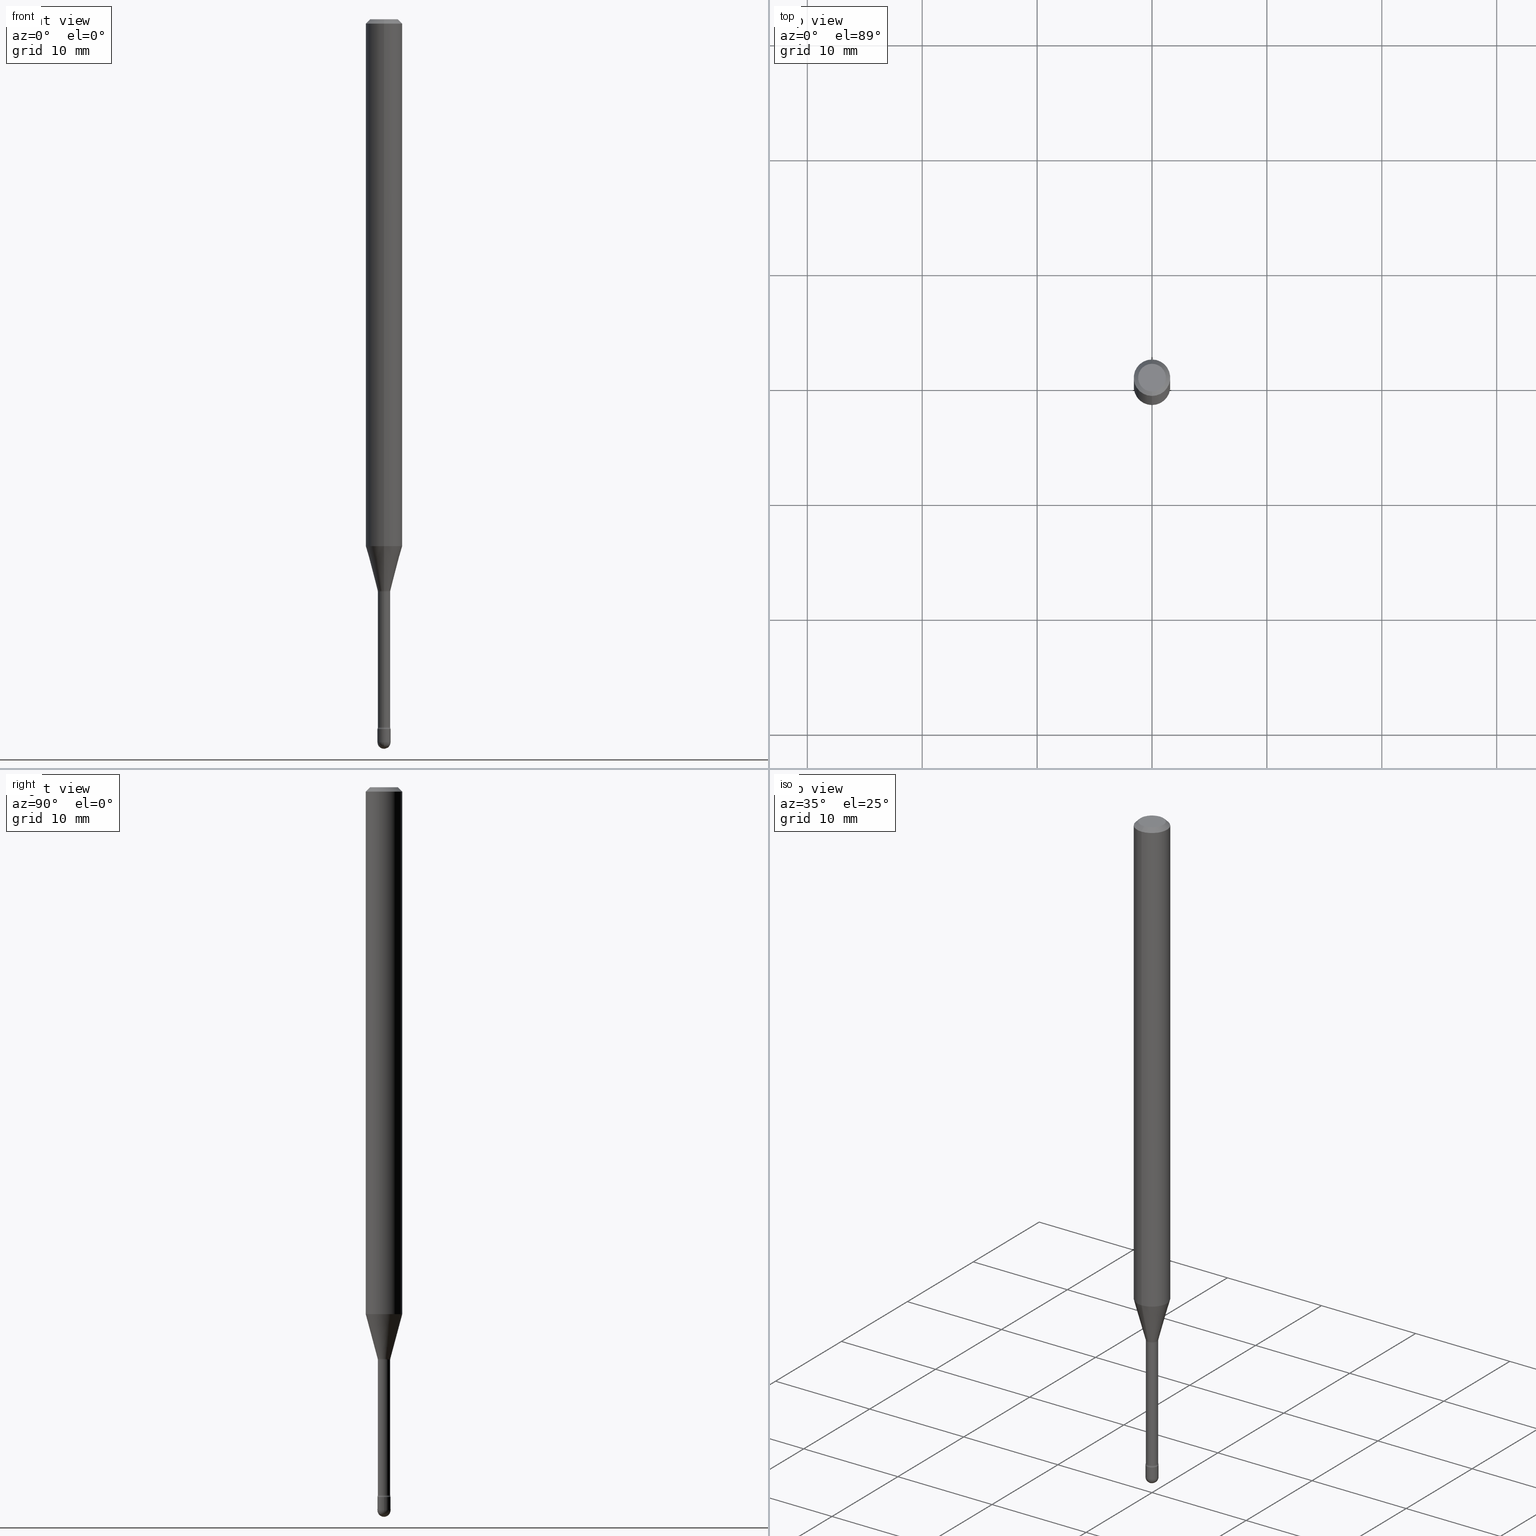
[diagram: canonical four-view strip — front | top / right | iso, engineering-drawing reading convention]
A machine part, canonical four-view strip (front | top / right | iso — engineering-drawing reading convention). The complete STEP part file that produces these views, byte-faithful:
ISO-10303-21;
HEADER;
FILE_DESCRIPTION (( 'STEP AP203' ),
    '1' );
FILE_NAME ('09462.STEP',
    '2024-04-09T23:26:53',
    ( '' ),
    ( '' ),
    'SwSTEP 2.0',
    'SolidWorks 2023',
    '' );
FILE_SCHEMA (( 'CONFIG_CONTROL_DESIGN' ));
ENDSEC;

DATA;
#1 = VERTEX_POINT ( 'NONE', #420 ) ;
#2 =( LENGTH_UNIT ( ) NAMED_UNIT ( * ) SI_UNIT ( $, .METRE. ) );
#3 = ORIENTED_EDGE ( 'NONE', *, *, #281, .F. ) ;
#4 = EDGE_CURVE ( 'NONE', #218, #417, #93, .T. ) ;
#5 = VECTOR ( 'NONE', #415, 39.37007874015748143 ) ;
#6 = DIRECTION ( 'NONE',  ( -2.445468806185136877E-29, 3.491481338843145188E-15, 1.000000000000000000 ) ) ;
#7 = VERTEX_POINT ( 'NONE', #429 ) ;
#8 = APPROVAL ( #192, 'UNSPECIFIED' ) ;
#9 = EDGE_LOOP ( 'NONE', ( #95, #479, #77, #105 ) ) ;
#10 = CARTESIAN_POINT ( 'NONE',  ( -0.02249999999999999917, -8.410841700979189875E-15, -2.432000000000000384 ) ) ;
#11 = EDGE_CURVE ( 'NONE', #7, #369, #405, .T. ) ;
#12 = CARTESIAN_POINT ( 'NONE',  ( 6.058648967323676636E-29, -8.650145016983893338E-15, -2.477500000000000036 ) ) ;
#13 = SHAPE_DEFINITION_REPRESENTATION ( #325, #337 ) ;
#14 = CIRCLE ( 'NONE', #329, 0.02166111260566397703 ) ;
#15 = CIRCLE ( 'NONE', #53, 0.02249999999999999917 ) ;
#16 = DIRECTION ( 'NONE',  ( -6.982962677686265922E-15, -1.000000000000000000, 3.491541821994768116E-15 ) ) ;
#17 = PERSON_AND_ORGANIZATION_ROLE ( 'design_owner' ) ;
#18 = APPLICATION_CONTEXT ( 'configuration controlled 3d designs of mechanical parts and assemblies' ) ;
#19 = EDGE_CURVE ( 'NONE', #378, #369, #364, .T. ) ;
#20 = DIRECTION ( 'NONE',  ( -6.982962677686265922E-15, -1.000000000000000000, 4.370956789862821150E-15 ) ) ;
#21 = PERSON_AND_ORGANIZATION ( #439, #316 ) ;
#22 = ADVANCED_FACE ( 'NONE', ( #362 ), #539, .F. ) ;
#23 = DIRECTION ( 'NONE',  ( -2.445426571026095552E-29, 3.491541821994768116E-15, 1.000000000000000000 ) ) ;
#24 = AXIS2_PLACEMENT_3D ( 'NONE', #413, #458, #507 ) ;
#25 = DIRECTION ( 'NONE',  ( -2.445426571026095552E-29, 3.491541821994768116E-15, 1.000000000000000000 ) ) ;
#26 = DIRECTION ( 'NONE',  ( 7.105427357601001859E-15, 1.000000000000000000, 0.000000000000000000 ) ) ;
#27 = CARTESIAN_POINT ( 'NONE',  ( -3.773273898774340269E-16, -0.04749999999999999362, 8.310407742290815133E-17 ) ) ;
#28 = ADVANCED_FACE ( 'NONE', ( #493 ), #330, .T. ) ;
#29 = CC_DESIGN_PERSON_AND_ORGANIZATION_ASSIGNMENT ( #21, #500, ( #308 ) ) ;
#30 = EDGE_LOOP ( 'NONE', ( #184, #271, #263, #314 ) ) ;
#31 = CARTESIAN_POINT ( 'NONE',  ( 6.058648967323676636E-29, -8.650145016983893338E-15, -2.477500000000000036 ) ) ;
#32 = CARTESIAN_POINT ( 'NONE',  ( 4.440892098501069896E-16, 0.06249999999999995143, -0.01500000000000030129 ) ) ;
#33 = CARTESIAN_POINT ( 'NONE',  ( 5.947380136642253002E-29, -8.491282616066530991E-15, -2.432000000000000384 ) ) ;
#34 = AXIS2_PLACEMENT_3D ( 'NONE', #290, #546, #491 ) ;
#35 = TOROIDAL_SURFACE ( 'NONE', #313, 0.03615000000000006403, 0.01500000000000001159 ) ;
#36 = PRODUCT_DEFINITION_FORMATION_WITH_SPECIFIED_SOURCE ( 'ANY', '', #245, .NOT_KNOWN. ) ;
#37 = DIRECTION ( 'NONE',  ( -2.445426571026095552E-29, 3.491541821994768116E-15, 1.000000000000000000 ) ) ;
#38 = DIRECTION ( 'NONE',  ( -1.000000000000000000, 6.982962677686265922E-15, -4.883557194083112340E-29 ) ) ;
#39 = ORIENTED_EDGE ( 'NONE', *, *, #275, .F. ) ;
#40 = DATE_AND_TIME ( #251, #349 ) ;
#41 = EDGE_CURVE ( 'NONE', #395, #1, #481, .T. ) ;
#42 = FACE_OUTER_BOUND ( 'NONE', #30, .T. ) ;
#43 = ORIENTED_EDGE ( 'NONE', *, *, #41, .F. ) ;
#44 = FACE_OUTER_BOUND ( 'NONE', #388, .T. ) ;
#45 = LINE ( 'NONE', #125, #94 ) ;
#46 = CARTESIAN_POINT ( 'NONE',  ( 0.02249999999999999570, -8.727830476773152219E-15, -2.477500000000000036 ) ) ;
#47 = CIRCLE ( 'NONE', #116, 0.02115000000000000560 ) ;
#48 = DIRECTION ( 'NONE',  ( -6.982962677686267499E-15, -1.000000000000000000, 0.000000000000000000 ) ) ;
#49 = ORIENTED_EDGE ( 'NONE', *, *, #113, .F. ) ;
#50 = ORIENTED_EDGE ( 'NONE', *, *, #433, .F. ) ;
#51 = ORIENTED_EDGE ( 'NONE', *, *, #71, .F. ) ;
#52 = CARTESIAN_POINT ( 'NONE',  ( 3.668139856539163560E-31, -5.237312732992181560E-17, -0.01500000000000008271 ) ) ;
#53 = AXIS2_PLACEMENT_3D ( 'NONE', #450, #23, #197 ) ;
#54 = FACE_OUTER_BOUND ( 'NONE', #425, .T. ) ;
#55 = EDGE_LOOP ( 'NONE', ( #49, #414, #502, #103 ) ) ;
#56 = CARTESIAN_POINT ( 'NONE',  ( 0.000000000000000000, 0.000000000000000000, 0.000000000000000000 ) ) ;
#57 = ADVANCED_FACE ( 'NONE', ( #327 ), #324, .T. ) ;
#58 = EDGE_CURVE ( 'NONE', #144, #430, #151, .T. ) ;
#59 = ORIENTED_EDGE ( 'NONE', *, *, #84, .F. ) ;
#60 = CYLINDRICAL_SURFACE ( 'NONE', #348, 0.02115000000000002642 ) ;
#61 = APPROVAL_DATE_TIME ( #468, #256 ) ;
#62 = APPLICATION_CONTEXT ( 'configuration controlled 3d designs of mechanical parts and assemblies' ) ;
#63 = AXIS2_PLACEMENT_3D ( 'NONE', #143, #434, #322 ) ;
#64 = CC_DESIGN_APPROVAL ( #523, ( #36 ) ) ;
#65 = CC_DESIGN_DATE_AND_TIME_ASSIGNMENT ( #461, #87, ( #308 ) ) ;
#66 = CARTESIAN_POINT ( 'NONE',  ( 6.058648967323676636E-29, -8.650145016983893338E-15, -2.477500000000000036 ) ) ;
#67 = DIRECTION ( 'NONE',  ( 0.000000000000000000, 0.000000000000000000, 1.000000000000000000 ) ) ;
#68 = CONICAL_SURFACE ( 'NONE', #482, 0.06250000000000000000, 0.7853981633974483900 ) ;
#69 = CARTESIAN_POINT ( 'NONE',  ( 5.932171463552647132E-29, -8.469568661610591604E-15, -2.425780876267511932 ) ) ;
#70 = PERSON_AND_ORGANIZATION ( #439, #316 ) ;
#71 = EDGE_CURVE ( 'NONE', #472, #253, #347, .T. ) ;
#72 = CARTESIAN_POINT ( 'NONE',  ( -1.512587408824631926E-16, -0.02166111260567081531, -1.958092501787273232 ) ) ;
#73 = FACE_OUTER_BOUND ( 'NONE', #530, .T. ) ;
#74 = DIRECTION ( 'NONE',  ( -2.445426571026095552E-29, 3.491541821994768116E-15, 1.000000000000000000 ) ) ;
#75 = CARTESIAN_POINT ( 'NONE',  ( 0.02249999999999999917, -8.648399276314471045E-15, -2.432000000000000384 ) ) ;
#76 = DIRECTION ( 'NONE',  ( -2.445426571026095552E-29, 3.491541821994768116E-15, 1.000000000000000000 ) ) ;
#77 = ORIENTED_EDGE ( 'NONE', *, *, #487, .F. ) ;
#78 = DIRECTION ( 'NONE',  ( -6.982962677686265922E-15, -1.000000000000000000, 4.370956789862821150E-15 ) ) ;
#79 = CARTESIAN_POINT ( 'NONE',  ( 1.571166602480017581E-16, 0.02249999999999136718, -2.477500000000000036 ) ) ;
#80 = EDGE_CURVE ( 'NONE', #223, #417, #382, .T. ) ;
#81 = AXIS2_PLACEMENT_3D ( 'NONE', #418, #214, #303 ) ;
#82 = ORIENTED_EDGE ( 'NONE', *, *, #219, .F. ) ;
#83 = APPROVAL_STATUS ( 'not_yet_approved' ) ;
#84 = EDGE_CURVE ( 'NONE', #140, #516, #236, .T. ) ;
#85 = ORIENTED_EDGE ( 'NONE', *, *, #407, .F. ) ;
#86 = CC_DESIGN_PERSON_AND_ORGANIZATION_ASSIGNMENT ( #560, #556, ( #36 ) ) ;
#87 = DATE_TIME_ROLE ( 'creation_date' ) ;
#88 = DIRECTION ( 'NONE',  ( -6.982962677686266711E-15, -1.000000000000000000, 0.000000000000000000 ) ) ;
#89 = ORIENTED_EDGE ( 'NONE', *, *, #334, .F. ) ;
#90 = DATE_AND_TIME ( #547, #519 ) ;
#91 = EDGE_CURVE ( 'NONE', #369, #378, #47, .T. ) ;
#92 = CARTESIAN_POINT ( 'NONE',  ( -1.169113584055446105E-44, 1.669184350826100908E-30, 4.780733988912460139E-16 ) ) ;
#93 = CIRCLE ( 'NONE', #221, 0.02249999999999999570 ) ;
#94 = VECTOR ( 'NONE', #37, 39.37007874015748143 ) ;
#95 = ORIENTED_EDGE ( 'NONE', *, *, #80, .F. ) ;
#96 = CIRCLE ( 'NONE', #412, 0.02249999999999999570 ) ;
#97 = ORIENTED_EDGE ( 'NONE', *, *, #566, .F. ) ;
#98 = VERTEX_POINT ( 'NONE', #156 ) ;
#99 = CALENDAR_DATE ( 2024, 9, 4 ) ;
#100 = ORIENTED_EDGE ( 'NONE', *, *, #58, .T. ) ;
#101 = EDGE_CURVE ( 'NONE', #7, #454, #14, .T. ) ;
#102 = AXIS2_PLACEMENT_3D ( 'NONE', #291, #462, #88 ) ;
#103 = ORIENTED_EDGE ( 'NONE', *, *, #510, .F. ) ;
#104 = DIRECTION ( 'NONE',  ( -2.445426571026095552E-29, 3.491541821994768116E-15, 1.000000000000000000 ) ) ;
#105 = ORIENTED_EDGE ( 'NONE', *, *, #183, .F. ) ;
#106 = DIRECTION ( 'NONE',  ( 1.000000000000000000, -6.982962677686269866E-15, 0.000000000000000000 ) ) ;
#107 = CARTESIAN_POINT ( 'NONE',  ( -4.364351673553475918E-16, -0.06250000000000632827, -1.805679699107026970 ) ) ;
#108 = CARTESIAN_POINT ( 'NONE',  ( 1.539114621044086185E-16, 0.02166111260565713875, -1.958092501787273232 ) ) ;
#109 = VECTOR ( 'NONE', #544, 39.37007874015748143 ) ;
#110 = CIRCLE ( 'NONE', #145, 0.02250000000000005121 ) ;
#111 = CC_DESIGN_APPROVAL ( #256, ( #505 ) ) ;
#112 = DIRECTION ( 'NONE',  ( -2.445468806185136597E-29, 3.491481338843145583E-15, 1.000000000000000000 ) ) ;
#113 = EDGE_CURVE ( 'NONE', #1, #397, #406, .T. ) ;
#114 = CARTESIAN_POINT ( 'NONE',  ( -0.02249999999999999917, 1.598721155460225359E-16, -1.106760395307353780E-30 ) ) ;
#115 = CARTESIAN_POINT ( 'NONE',  ( 4.797865276947280430E-29, -6.850317024129193206E-15, -1.961974787463811154 ) ) ;
#116 = AXIS2_PLACEMENT_3D ( 'NONE', #115, #446, #240 ) ;
#117 = CIRCLE ( 'NONE', #163, 0.02166111260566397703 ) ;
#118 = AXIS2_PLACEMENT_3D ( 'NONE', #422, #135, #469 ) ;
#119 = EDGE_CURVE ( 'NONE', #1, #395, #401, .T. ) ;
#120 = CARTESIAN_POINT ( 'NONE',  ( 4.797948141264463506E-29, -6.850198357710643082E-15, -1.961974787463811154 ) ) ;
#121 = DIRECTION ( 'NONE',  ( -6.982962677686266711E-15, -1.000000000000000000, 0.000000000000000000 ) ) ;
#122 = ADVANCED_FACE ( 'NONE', ( #403 ), #421, .T. ) ;
#123 = EDGE_CURVE ( 'NONE', #98, #397, #358, .T. ) ;
#124 = DIRECTION ( 'NONE',  ( -6.982962677686265922E-15, -1.000000000000000000, 3.483106191921935554E-15 ) ) ;
#125 = CARTESIAN_POINT ( 'NONE',  ( 1.502797886132613524E-16, 0.02115000000000002642, 4.042272893560565981E-16 ) ) ;
#126 = ORIENTED_EDGE ( 'NONE', *, *, #268, .F. ) ;
#127 = VECTOR ( 'NONE', #164, 39.37007874015748854 ) ;
#128 = EDGE_LOOP ( 'NONE', ( #59, #210, #520, #307, #269 ) ) ;
#129 = CARTESIAN_POINT ( 'NONE',  ( -4.364351673553916201E-16, -0.06250000000000000000, 6.962947627659190459E-16 ) ) ;
#130 = ORIENTED_EDGE ( 'NONE', *, *, #153, .T. ) ;
#131 = ADVANCED_FACE ( 'NONE', ( #44 ), #68, .T. ) ;
#132 = DIRECTION ( 'NONE',  ( -2.445426571026095552E-29, 3.491541821994768116E-15, 1.000000000000000000 ) ) ;
#133 = ORIENTED_EDGE ( 'NONE', *, *, #183, .T. ) ;
#134 = APPROVAL_STATUS ( 'not_yet_approved' ) ;
#135 = DIRECTION ( 'NONE',  ( -1.000000000000000000, 6.982962677686265922E-15, -4.883557194083112340E-29 ) ) ;
#136 = DIRECTION ( 'NONE',  ( -6.982962677686265922E-15, -1.000000000000000000, 3.491541821994767722E-15 ) ) ;
#137 = AXIS2_PLACEMENT_3D ( 'NONE', #480, #531, #351 ) ;
#138 = ORIENTED_EDGE ( 'NONE', *, *, #377, .F. ) ;
#139 = CARTESIAN_POINT ( 'NONE',  ( -4.287811248607203282E-16, -0.06250000000000005551, -0.01499999999999986587 ) ) ;
#140 = VERTEX_POINT ( 'NONE', #260 ) ;
#141 = DIRECTION ( 'NONE',  ( -6.982962677686265922E-15, -1.000000000000000000, 3.483106191921935554E-15 ) ) ;
#142 = EDGE_LOOP ( 'NONE', ( #85, #130, #356, #82 ) ) ;
#143 = CARTESIAN_POINT ( 'NONE',  ( -1.169113584055446105E-44, 1.669184350826100908E-30, 4.780733988912460139E-16 ) ) ;
#144 = VERTEX_POINT ( 'NONE', #171 ) ;
#145 = AXIS2_PLACEMENT_3D ( 'NONE', #12, #148, #534 ) ;
#146 = LOCAL_TIME ( 19, 26, 53.00000000000000000, #292 ) ;
#147 = APPROVAL_DATE_TIME ( #404, #8 ) ;
#148 = DIRECTION ( 'NONE',  ( -1.000000000000000000, 7.105427357601001070E-15, -4.926315508542082329E-29 ) ) ;
#149 = CARTESIAN_POINT ( 'NONE',  ( 4.415657114958730253E-29, -6.304606186559115346E-15, -1.805679699107027192 ) ) ;
#150 = APPROVAL_ROLE ( '' ) ;
#151 = CIRCLE ( 'NONE', #293, 0.01500000000000001159 ) ;
#152 = AXIS2_PLACEMENT_3D ( 'NONE', #239, #451, #200 ) ;
#153 = EDGE_CURVE ( 'NONE', #253, #98, #380, .T. ) ;
#154 = APPROVAL_PERSON_ORGANIZATION ( #261, #256, #346 ) ;
#155 = CARTESIAN_POINT ( 'NONE',  ( 0.000000000000000000, 0.000000000000000000, 0.000000000000000000 ) ) ;
#156 = CARTESIAN_POINT ( 'NONE',  ( -4.364351673553912750E-16, -0.06250000000000005551, -0.01499999999999986587 ) ) ;
#157 = CARTESIAN_POINT ( 'NONE',  ( 1.571166602480004515E-16, 0.02249999999999150943, -2.432000000000000384 ) ) ;
#158 = ORIENTED_EDGE ( 'NONE', *, *, #4, .T. ) ;
#159 = DIRECTION ( 'NONE',  ( 1.000000000000000000, -7.105427357601001070E-15, 4.926316249247062833E-29 ) ) ;
#160 = MECHANICAL_CONTEXT ( 'NONE', #18, 'mechanical' ) ;
#161 = DIRECTION ( 'NONE',  ( -2.445468806185136597E-29, 3.491481338843145583E-15, 1.000000000000000000 ) ) ;
#162 = CARTESIAN_POINT ( 'NONE',  ( 2.568611989773242010E-16, 0.03614999999999315289, -1.961974787463811154 ) ) ;
#163 = AXIS2_PLACEMENT_3D ( 'NONE', #173, #215, #168 ) ;
#164 = DIRECTION ( 'NONE',  ( -1.807323732225326195E-15, -0.2588190451025176309, 0.9659258262890690894 ) ) ;
#165 =( GEOMETRIC_REPRESENTATION_CONTEXT ( 3 ) GLOBAL_UNCERTAINTY_ASSIGNED_CONTEXT ( ( #295 ) ) GLOBAL_UNIT_ASSIGNED_CONTEXT ( ( #266, #473, #367 ) ) REPRESENTATION_CONTEXT ( 'NONE', 'WORKASPACE' ) );
#166 = ORIENTED_EDGE ( 'NONE', *, *, #315, .T. ) ;
#167 = DIRECTION ( 'NONE',  ( 6.982962677686265922E-15, 1.000000000000000000, -3.483106191921935554E-15 ) ) ;
#168 = DIRECTION ( 'NONE',  ( -6.982962677686266711E-15, -1.000000000000000000, 0.000000000000000000 ) ) ;
#169 = ORIENTED_EDGE ( 'NONE', *, *, #11, .F. ) ;
#170 = ORIENTED_EDGE ( 'NONE', *, *, #19, .T. ) ;
#171 = CARTESIAN_POINT ( 'NONE',  ( 1.550759520797014538E-16, 0.02114999999999158178, -2.425780876267511932 ) ) ;
#172 = EDGE_CURVE ( 'NONE', #498, #430, #541, .T. ) ;
#173 = CARTESIAN_POINT ( 'NONE',  ( 4.788371432397560516E-29, -6.836761861324629935E-15, -1.958092501787273232 ) ) ;
#174 = AXIS2_PLACEMENT_3D ( 'NONE', #69, #366, #442 ) ;
#175 = APPROVAL_PERSON_ORGANIZATION ( #230, #8, #150 ) ;
#176 = CARTESIAN_POINT ( 'NONE',  ( -1.512587408824631926E-16, -0.02166111260567081531, -1.958092501787273232 ) ) ;
#177 = ADVANCED_FACE ( 'NONE', ( #296 ), #460, .F. ) ;
#178 = DIRECTION ( 'NONE',  ( -2.445468806185136597E-29, 3.491481338843145583E-15, 1.000000000000000000 ) ) ;
#179 = ORIENTED_EDGE ( 'NONE', *, *, #113, .T. ) ;
#180 = LENGTH_MEASURE_WITH_UNIT ( LENGTH_MEASURE( 0.02539999999999999897 ), #2 );
#181 = CIRCLE ( 'NONE', #285, 0.02115000000000005070 ) ;
#182 = ORIENTED_EDGE ( 'NONE', *, *, #407, .T. ) ;
#183 = EDGE_CURVE ( 'NONE', #417, #140, #204, .T. ) ;
#184 = ORIENTED_EDGE ( 'NONE', *, *, #101, .F. ) ;
#185 = CYLINDRICAL_SURFACE ( 'NONE', #471, 0.02249999999999999917 ) ;
#186 = DIRECTION ( 'NONE',  ( 1.000000000000000000, -6.982962677686269077E-15, 0.000000000000000000 ) ) ;
#187 = ORIENTED_EDGE ( 'NONE', *, *, #172, .T. ) ;
#188 = ADVANCED_FACE ( 'NONE', ( #73 ), #267, .F. ) ;
#189 = AXIS2_PLACEMENT_3D ( 'NONE', #162, #159, #26 ) ;
#190 = CIRCLE ( 'NONE', #137, 0.02249999999999999570 ) ;
#191 = DIRECTION ( 'NONE',  ( 1.000000000000000000, -6.982962677686269866E-15, 0.000000000000000000 ) ) ;
#192 = APPROVAL_STATUS ( 'not_yet_approved' ) ;
#193 = DIRECTION ( 'NONE',  ( 7.105427357600999492E-15, 1.000000000000000000, 0.000000000000000000 ) ) ;
#194 = DIRECTION ( 'NONE',  ( 1.000000000000000000, -7.105427357601001070E-15, 4.926316249247062833E-29 ) ) ;
#195 = AXIS2_PLACEMENT_3D ( 'NONE', #155, #112, #563 ) ;
#196 = ADVANCED_FACE ( 'NONE', ( #497 ), #201, .F. ) ;
#197 = DIRECTION ( 'NONE',  ( -6.982962677686265133E-15, -1.000000000000000000, 0.000000000000000000 ) ) ;
#198 = CARTESIAN_POINT ( 'NONE',  ( 3.316907271900976096E-16, 0.04749999999999999362, 3.181638333994990684E-17 ) ) ;
#199 = CARTESIAN_POINT ( 'NONE',  ( 2.568611989773359353E-16, 0.03614999999999159164, -2.425780876267511932 ) ) ;
#200 = DIRECTION ( 'NONE',  ( 1.000000000000000000, -6.982962677686269866E-15, 0.000000000000000000 ) ) ;
#201 = PLANE ( 'NONE',  #518 ) ;
#202 = ORIENTED_EDGE ( 'NONE', *, *, #172, .F. ) ;
#203 = DIRECTION ( 'NONE',  ( 6.982962677686265922E-15, 1.000000000000000000, 0.000000000000000000 ) ) ;
#204 = CIRCLE ( 'NONE', #152, 0.02249999999999999570 ) ;
#205 = APPROVAL_PERSON_ORGANIZATION ( #419, #523, #381 ) ;
#206 = DIRECTION ( 'NONE',  ( -6.982962677686265922E-15, -1.000000000000000000, 3.491541821994767722E-15 ) ) ;
#207 = EDGE_LOOP ( 'NONE', ( #400, #100, #300, #97 ) ) ;
#208 = LINE ( 'NONE', #129, #5 ) ;
#209 = COORDINATED_UNIVERSAL_TIME_OFFSET ( 5, 0, .BEHIND. ) ;
#210 = ORIENTED_EDGE ( 'NONE', *, *, #487, .T. ) ;
#211 = ADVANCED_FACE ( 'NONE', ( #463 ), #490, .T. ) ;
#212 = CONICAL_SURFACE ( 'NONE', #213, 0.02166111260566397703, 0.2617993877991496854 ) ;
#213 = AXIS2_PLACEMENT_3D ( 'NONE', #226, #437, #319 ) ;
#214 = DIRECTION ( 'NONE',  ( -1.000000000000000000, 6.982962677686265922E-15, -4.883557194083111780E-29 ) ) ;
#215 = DIRECTION ( 'NONE',  ( -2.445426571026095552E-29, 3.491541821994768116E-15, 1.000000000000000000 ) ) ;
#216 = ORIENTED_EDGE ( 'NONE', *, *, #268, .T. ) ;
#217 = EDGE_CURVE ( 'NONE', #454, #378, #246, .T. ) ;
#218 = VERTEX_POINT ( 'NONE', #46 ) ;
#219 = EDGE_CURVE ( 'NONE', #472, #397, #384, .T. ) ;
#220 = DATE_TIME_ROLE ( 'classification_date' ) ;
#221 = AXIS2_PLACEMENT_3D ( 'NONE', #387, #565, #191 ) ;
#222 = AXIS2_PLACEMENT_3D ( 'NONE', #416, #254, #299 ) ;
#223 = VERTEX_POINT ( 'NONE', #286 ) ;
#224 = AXIS2_PLACEMENT_3D ( 'NONE', #233, #67, #320 ) ;
#225 = DIRECTION ( 'NONE',  ( -2.445468806185136597E-29, 3.491481338843145583E-15, 1.000000000000000000 ) ) ;
#226 = CARTESIAN_POINT ( 'NONE',  ( 4.788371432397560516E-29, -6.836761861324629935E-15, -1.958092501787273232 ) ) ;
#227 = ORIENTED_EDGE ( 'NONE', *, *, #281, .T. ) ;
#228 = CYLINDRICAL_SURFACE ( 'NONE', #63, 0.02115000000000002642 ) ;
#229 = ORIENTED_EDGE ( 'NONE', *, *, #101, .T. ) ;
#230 = PERSON_AND_ORGANIZATION ( #439, #316 ) ;
#231 = AXIS2_PLACEMENT_3D ( 'NONE', #374, #550, #278 ) ;
#232 = VECTOR ( 'NONE', #537, 39.37007874015748143 ) ;
#233 = CARTESIAN_POINT ( 'NONE',  ( 0.000000000000000000, 0.000000000000000000, 0.000000000000000000 ) ) ;
#234 = DIRECTION ( 'NONE',  ( -6.982962677686266711E-15, -1.000000000000000000, 3.491541821994766539E-15 ) ) ;
#235 = EDGE_CURVE ( 'NONE', #430, #498, #15, .T. ) ;
#236 = LINE ( 'NONE', #114, #109 ) ;
#237 = DIRECTION ( 'NONE',  ( 1.000000000000000000, -6.982962677686265922E-15, 4.883557194083112340E-29 ) ) ;
#238 = TOROIDAL_SURFACE ( 'NONE', #365, 0.03615000000000000852, 0.01500000000000003067 ) ;
#239 = CARTESIAN_POINT ( 'NONE',  ( 6.058648967323676636E-29, -8.650145016983893338E-15, -2.477500000000000036 ) ) ;
#240 = DIRECTION ( 'NONE',  ( -6.982962677686265133E-15, -1.000000000000000000, 0.000000000000000000 ) ) ;
#241 = PERSON_AND_ORGANIZATION_ROLE ( 'classification_officer' ) ;
#242 = EDGE_LOOP ( 'NONE', ( #227, #249, #43, #126 ) ) ;
#243 = CARTESIAN_POINT ( 'NONE',  ( -1.476896606330055594E-16, -0.02115000000000851962, -2.425780876267511932 ) ) ;
#244 = AXIS2_PLACEMENT_3D ( 'NONE', #370, #408, #78 ) ;
#245 = PRODUCT ( '09462', '09462', '', ( #160 ) ) ;
#246 = CIRCLE ( 'NONE', #323, 0.01500000000000002720 ) ;
#247 = EDGE_LOOP ( 'NONE', ( #431, #179, #508, #306 ) ) ;
#248 = DIRECTION ( 'NONE',  ( -2.445426571026095272E-29, 3.491541821994768116E-15, 1.000000000000000000 ) ) ;
#249 = ORIENTED_EDGE ( 'NONE', *, *, #339, .T. ) ;
#250 = DIRECTION ( 'NONE',  ( -2.445426571026095552E-29, 3.491541821994768116E-15, 1.000000000000000000 ) ) ;
#251 = CALENDAR_DATE ( 2024, 9, 4 ) ;
#252 = EDGE_LOOP ( 'NONE', ( #345, #89, #484, #187 ) ) ;
#253 = VERTEX_POINT ( 'NONE', #27 ) ;
#254 = DIRECTION ( 'NONE',  ( -2.445426571026095552E-29, 3.491541821994768116E-15, 1.000000000000000000 ) ) ;
#255 = CARTESIAN_POINT ( 'NONE',  ( -2.524341007983105646E-16, -0.03615000000000685720, -1.961974787463811154 ) ) ;
#256 = APPROVAL ( #134, 'UNSPECIFIED' ) ;
#257 = AXIS2_PLACEMENT_3D ( 'NONE', #288, #538, #452 ) ;
#258 = AXIS2_PLACEMENT_3D ( 'NONE', #120, #76, #206 ) ;
#259 = EDGE_LOOP ( 'NONE', ( #133, #411, #466, #138, #158 ) ) ;
#260 = CARTESIAN_POINT ( 'NONE',  ( -0.02249999999999999570, -8.410841700979189875E-15, -2.477500000000000036 ) ) ;
#261 = PERSON_AND_ORGANIZATION ( #439, #316 ) ;
#262 = LINE ( 'NONE', #108, #561 ) ;
#263 = ORIENTED_EDGE ( 'NONE', *, *, #91, .T. ) ;
#264 = CARTESIAN_POINT ( 'NONE',  ( -1.169113584055446105E-44, 1.669184350826100908E-30, 4.780733988912460139E-16 ) ) ;
#265 = ORIENTED_EDGE ( 'NONE', *, *, #71, .T. ) ;
#266 =( CONVERSION_BASED_UNIT ( 'INCH', #180 ) LENGTH_UNIT ( ) NAMED_UNIT ( #302 ) );
#267 = TOROIDAL_SURFACE ( 'NONE', #258, 0.03615000000000000852, 0.01500000000000003067 ) ;
#268 = EDGE_CURVE ( 'NONE', #454, #395, #443, .T. ) ;
#269 = ORIENTED_EDGE ( 'NONE', *, *, #315, .F. ) ;
#270 = ORIENTED_EDGE ( 'NONE', *, *, #119, .F. ) ;
#271 = ORIENTED_EDGE ( 'NONE', *, *, #11, .T. ) ;
#272 = CARTESIAN_POINT ( 'NONE',  ( 5.932171463552647132E-29, -8.469568661610591604E-15, -2.425780876267511932 ) ) ;
#273 = CONICAL_SURFACE ( 'NONE', #222, 0.02166111260566397703, 0.2617993877991496854 ) ;
#274 = LOCAL_TIME ( 19, 26, 53.00000000000000000, #359 ) ;
#275 = EDGE_CURVE ( 'NONE', #427, #378, #361, .T. ) ;
#276 = CARTESIAN_POINT ( 'NONE',  ( 1.502797886133206648E-16, 0.02114999999999315344, -1.961974787463811154 ) ) ;
#277 = ADVANCED_FACE ( 'NONE', ( #321 ), #540, .T. ) ;
#278 = DIRECTION ( 'NONE',  ( -6.982962677686266711E-15, -1.000000000000000000, 3.491541821994768116E-15 ) ) ;
#279 = ADVANCED_FACE ( 'NONE', ( #386 ), #273, .T. ) ;
#280 = DIRECTION ( 'NONE',  ( -2.445426571026095552E-29, 3.491541821994768116E-15, 1.000000000000000000 ) ) ;
#281 = EDGE_CURVE ( 'NONE', #454, #7, #117, .T. ) ;
#282 = EDGE_LOOP ( 'NONE', ( #50, #350, #459, #289 ) ) ;
#283 = DIRECTION ( 'NONE',  ( 6.982962677686265922E-15, 1.000000000000000000, 0.000000000000000000 ) ) ;
#284 = PERSON_AND_ORGANIZATION_ROLE ( 'design_supplier' ) ;
#285 = AXIS2_PLACEMENT_3D ( 'NONE', #376, #298, #553 ) ;
#286 = CARTESIAN_POINT ( 'NONE',  ( 6.114634077538169075E-29, -8.727325619458823825E-15, -2.500000000000000000 ) ) ;
#287 = DIRECTION ( 'NONE',  ( 6.982962677686265922E-15, 1.000000000000000000, -3.491541821994768116E-15 ) ) ;
#288 = CARTESIAN_POINT ( 'NONE',  ( 5.947380136642253002E-29, -8.491282616066530991E-15, -2.432000000000000384 ) ) ;
#289 = ORIENTED_EDGE ( 'NONE', *, *, #91, .F. ) ;
#290 = CARTESIAN_POINT ( 'NONE',  ( 4.797865276947280430E-29, -6.850317024129193206E-15, -1.961974787463811154 ) ) ;
#291 = CARTESIAN_POINT ( 'NONE',  ( 5.932069010311539721E-29, -8.469715380483133071E-15, -2.425780876267511932 ) ) ;
#292 = COORDINATED_UNIVERSAL_TIME_OFFSET ( 5, 0, .BEHIND. ) ;
#293 = AXIS2_PLACEMENT_3D ( 'NONE', #199, #194, #193 ) ;
#294 = AXIS2_PLACEMENT_3D ( 'NONE', #198, #328, #287 ) ;
#295 = UNCERTAINTY_MEASURE_WITH_UNIT (LENGTH_MEASURE( 1.000000000000000082E-05 ), #266, 'distance_accuracy_value', 'NONE');
#296 = FACE_OUTER_BOUND ( 'NONE', #318, .T. ) ;
#297 = DIRECTION ( 'NONE',  ( 1.000000000000000000, -6.982962677686269077E-15, 0.000000000000000000 ) ) ;
#298 = DIRECTION ( 'NONE',  ( -2.445426571026095552E-29, 3.491541821994768116E-15, 1.000000000000000000 ) ) ;
#299 = DIRECTION ( 'NONE',  ( -6.982962677686266711E-15, -1.000000000000000000, 0.000000000000000000 ) ) ;
#300 = ORIENTED_EDGE ( 'NONE', *, *, #235, .T. ) ;
#301 = FACE_OUTER_BOUND ( 'NONE', #55, .T. ) ;
#302 = DIMENSIONAL_EXPONENTS ( 1.000000000000000000, 0.000000000000000000, 0.000000000000000000, 0.000000000000000000, 0.000000000000000000, 0.000000000000000000, 0.000000000000000000 ) ;
#303 = DIRECTION ( 'NONE',  ( 6.982962677686265922E-15, 1.000000000000000000, 0.000000000000000000 ) ) ;
#304 = ADVANCED_FACE ( 'NONE', ( #42 ), #238, .F. ) ;
#305 = AXIS2_PLACEMENT_3D ( 'NONE', #92, #332, #453 ) ;
#306 = ORIENTED_EDGE ( 'NONE', *, *, #474, .F. ) ;
#307 = ORIENTED_EDGE ( 'NONE', *, *, #377, .T. ) ;
#308 = PRODUCT_DEFINITION ( 'UNKNOWN', '', #36, #543 ) ;
#309 = CARTESIAN_POINT ( 'NONE',  ( -1.476896606330165788E-16, -0.02115000000000685429, -1.961974787463811154 ) ) ;
#310 = EDGE_LOOP ( 'NONE', ( #464, #499, #424, #428 ) ) ;
#311 = VERTEX_POINT ( 'NONE', #512 ) ;
#312 = AXIS2_PLACEMENT_3D ( 'NONE', #31, #441, #203 ) ;
#313 = AXIS2_PLACEMENT_3D ( 'NONE', #272, #104, #16 ) ;
#314 = ORIENTED_EDGE ( 'NONE', *, *, #217, .F. ) ;
#315 = EDGE_CURVE ( 'NONE', #516, #477, #504, .T. ) ;
#316 = ORGANIZATION ( 'UNSPECIFIED', 'UNSPECIFIED', '' ) ;
#317 = DIRECTION ( 'NONE',  ( -6.982962677686265922E-15, -1.000000000000000000, 3.491541821994766933E-15 ) ) ;
#318 = EDGE_LOOP ( 'NONE', ( #265, #182 ) ) ;
#319 = DIRECTION ( 'NONE',  ( -6.982962677686266711E-15, -1.000000000000000000, 0.000000000000000000 ) ) ;
#320 = DIRECTION ( 'NONE',  ( 1.000000000000000000, 0.000000000000000000, 0.000000000000000000 ) ) ;
#321 = FACE_OUTER_BOUND ( 'NONE', #128, .T. ) ;
#322 = DIRECTION ( 'NONE',  ( -6.982962677686266711E-15, -1.000000000000000000, 3.491541821994766539E-15 ) ) ;
#323 = AXIS2_PLACEMENT_3D ( 'NONE', #255, #38, #48 ) ;
#324 = SPHERICAL_SURFACE ( 'NONE', #312, 0.02250000000000005121 ) ;
#325 = PRODUCT_DEFINITION_SHAPE ( 'NONE', 'NONE',  #308 ) ;
#326 = ORIENTED_EDGE ( 'NONE', *, *, #219, .T. ) ;
#327 = FACE_OUTER_BOUND ( 'NONE', #9, .T. ) ;
#328 = DIRECTION ( 'NONE',  ( 2.445426571026095272E-29, -3.491541821994768116E-15, -1.000000000000000000 ) ) ;
#329 = AXIS2_PLACEMENT_3D ( 'NONE', #492, #280, #121 ) ;
#330 = PLANE ( 'NONE',  #257 ) ;
#331 = AXIS2_PLACEMENT_3D ( 'NONE', #33, #161, #297 ) ;
#332 = DIRECTION ( 'NONE',  ( -2.445426571026095552E-29, 3.491541821994768116E-15, 1.000000000000000000 ) ) ;
#333 = APPROVAL_DATE_TIME ( #40, #523 ) ;
#334 = EDGE_CURVE ( 'NONE', #427, #144, #343, .T. ) ;
#335 = EDGE_LOOP ( 'NONE', ( #202, #554 ) ) ;
#336 = CARTESIAN_POINT ( 'NONE',  ( 5.947277420735465684E-29, -8.491429711091275529E-15, -2.432000000000000384 ) ) ;
#337 = ADVANCED_BREP_SHAPE_REPRESENTATION ( '09462', ( #506, #513, #224 ), #165 ) ;
#338 = DIRECTION ( 'NONE',  ( -6.982962677686266711E-15, -1.000000000000000000, 3.491541821994768116E-15 ) ) ;
#339 = EDGE_CURVE ( 'NONE', #7, #1, #262, .T. ) ;
#340 = ORIENTED_EDGE ( 'NONE', *, *, #510, .T. ) ;
#341 = ADVANCED_FACE ( 'NONE', ( #486 ), #35, .F. ) ;
#342 = DIRECTION ( 'NONE',  ( -4.851104656540964275E-15, -0.7071067811865500152, -0.7071067811865450192 ) ) ;
#343 = CIRCLE ( 'NONE', #102, 0.02115000000000005070 ) ;
#344 = ADVANCED_FACE ( 'NONE', ( #360 ), #228, .T. ) ;
#345 = ORIENTED_EDGE ( 'NONE', *, *, #58, .F. ) ;
#346 = APPROVAL_ROLE ( '' ) ;
#347 = CIRCLE ( 'NONE', #231, 0.04749999999999999362 ) ;
#348 = AXIS2_PLACEMENT_3D ( 'NONE', #355, #399, #234 ) ;
#349 = LOCAL_TIME ( 19, 26, 53.00000000000000000, #209 ) ;
#350 = ORIENTED_EDGE ( 'NONE', *, *, #475, .T. ) ;
#351 = DIRECTION ( 'NONE',  ( 1.000000000000000000, -6.982962677686269866E-15, 0.000000000000000000 ) ) ;
#352 = ADVANCED_FACE ( 'NONE', ( #536 ), #60, .T. ) ;
#353 = ORIENTED_EDGE ( 'NONE', *, *, #153, .F. ) ;
#354 = EDGE_CURVE ( 'NONE', #223, #311, #110, .T. ) ;
#355 = CARTESIAN_POINT ( 'NONE',  ( -1.169113584055446105E-44, 1.669184350826100908E-30, 4.780733988912460139E-16 ) ) ;
#356 = ORIENTED_EDGE ( 'NONE', *, *, #123, .T. ) ;
#357 = DIRECTION ( 'NONE',  ( -2.445426571026095552E-29, 3.491541821994768116E-15, 1.000000000000000000 ) ) ;
#358 = CIRCLE ( 'NONE', #402, 0.06250000000000000000 ) ;
#359 = COORDINATED_UNIVERSAL_TIME_OFFSET ( 5, 0, .BEHIND. ) ;
#360 = FACE_OUTER_BOUND ( 'NONE', #373, .T. ) ;
#361 = LINE ( 'NONE', #363, #232 ) ;
#362 = FACE_OUTER_BOUND ( 'NONE', #207, .T. ) ;
#363 = CARTESIAN_POINT ( 'NONE',  ( -1.476896606330647239E-16, -0.02115000000000002642, 5.519195084264354791E-16 ) ) ;
#364 = CIRCLE ( 'NONE', #34, 0.02115000000000000560 ) ;
#365 = AXIS2_PLACEMENT_3D ( 'NONE', #564, #132, #136 ) ;
#366 = DIRECTION ( 'NONE',  ( -2.445426571026095552E-29, 3.491541821994768116E-15, 1.000000000000000000 ) ) ;
#367 =( NAMED_UNIT ( * ) SI_UNIT ( $, .STERADIAN. ) SOLID_ANGLE_UNIT ( ) );
#368 = ADVANCED_FACE ( 'NONE', ( #54 ), #212, .T. ) ;
#369 = VERTEX_POINT ( 'NONE', #276 ) ;
#370 = CARTESIAN_POINT ( 'NONE',  ( 4.415657114958730253E-29, -6.304606186559115346E-15, -1.805679699107027192 ) ) ;
#371 = PERSON_AND_ORGANIZATION ( #439, #316 ) ;
#372 = CLOSED_SHELL ( 'NONE', ( #509, #57, #28, #122, #277 ) ) ;
#373 = EDGE_LOOP ( 'NONE', ( #525, #379, #558, #39 ) ) ;
#374 = CARTESIAN_POINT ( 'NONE',  ( 2.023245738077314777E-45, -2.889336074855777135E-31, -8.274415912184331153E-17 ) ) ;
#375 = EDGE_CURVE ( 'NONE', #477, #516, #548, .T. ) ;
#376 = CARTESIAN_POINT ( 'NONE',  ( 5.932069010311539721E-29, -8.469715380483133071E-15, -2.425780876267511932 ) ) ;
#377 = EDGE_CURVE ( 'NONE', #218, #477, #440, .T. ) ;
#378 = VERTEX_POINT ( 'NONE', #309 ) ;
#379 = ORIENTED_EDGE ( 'NONE', *, *, #433, .T. ) ;
#380 = LINE ( 'NONE', #139, #494 ) ;
#381 = APPROVAL_ROLE ( '' ) ;
#382 = CIRCLE ( 'NONE', #532, 0.02250000000000005121 ) ;
#383 = CC_DESIGN_APPROVAL ( #8, ( #308 ) ) ;
#384 = LINE ( 'NONE', #514, #456 ) ;
#385 = DIRECTION ( 'NONE',  ( -2.445426571026095552E-29, 3.491541821994768116E-15, 1.000000000000000000 ) ) ;
#386 = FACE_OUTER_BOUND ( 'NONE', #242, .T. ) ;
#387 = CARTESIAN_POINT ( 'NONE',  ( 6.058648967323676636E-29, -8.650145016983893338E-15, -2.477500000000000036 ) ) ;
#388 = EDGE_LOOP ( 'NONE', ( #353, #51, #326, #340 ) ) ;
#389 = DIRECTION ( 'NONE',  ( -2.445426571026095552E-29, 3.491541821994768116E-15, 1.000000000000000000 ) ) ;
#390 = DIRECTION ( 'NONE',  ( 4.937700262164548042E-15, 0.7071067811865451302, -0.7071067811865499042 ) ) ;
#391 = ORIENTED_EDGE ( 'NONE', *, *, #375, .T. ) ;
#392 = CARTESIAN_POINT ( 'NONE',  ( -1.571166602478815307E-16, -0.02250000000000849237, -2.432000000000000384 ) ) ;
#393 = AXIS2_PLACEMENT_3D ( 'NONE', #336, #250, #503 ) ;
#394 = DIRECTION ( 'NONE',  ( 1.839019923739596371E-15, 0.2588190451025244032, 0.9659258262890673130 ) ) ;
#395 = VERTEX_POINT ( 'NONE', #107 ) ;
#396 = CARTESIAN_POINT ( 'NONE',  ( 5.947380136642253002E-29, -8.491282616066530991E-15, -2.432000000000000384 ) ) ;
#397 = VERTEX_POINT ( 'NONE', #32 ) ;
#398 = CC_DESIGN_PERSON_AND_ORGANIZATION_ASSIGNMENT ( #70, #241, ( #505 ) ) ;
#399 = DIRECTION ( 'NONE',  ( -2.445426571026095552E-29, 3.491541821994768116E-15, 1.000000000000000000 ) ) ;
#400 = ORIENTED_EDGE ( 'NONE', *, *, #475, .F. ) ;
#401 = CIRCLE ( 'NONE', #244, 0.06250000000000000000 ) ;
#402 = AXIS2_PLACEMENT_3D ( 'NONE', #511, #389, #124 ) ;
#403 = FACE_OUTER_BOUND ( 'NONE', #310, .T. ) ;
#404 = DATE_AND_TIME ( #535, #274 ) ;
#405 = CIRCLE ( 'NONE', #189, 0.01500000000000002720 ) ;
#406 = LINE ( 'NONE', #455, #489 ) ;
#407 = EDGE_CURVE ( 'NONE', #253, #472, #533, .T. ) ;
#408 = DIRECTION ( 'NONE',  ( -2.445426571026095552E-29, 3.491541821994768116E-15, 1.000000000000000000 ) ) ;
#409 = COORDINATED_UNIVERSAL_TIME_OFFSET ( 5, 0, .BEHIND. ) ;
#410 = CC_DESIGN_PERSON_AND_ORGANIZATION_ASSIGNMENT ( #438, #17, ( #245 ) ) ;
#411 = ORIENTED_EDGE ( 'NONE', *, *, #84, .T. ) ;
#412 = AXIS2_PLACEMENT_3D ( 'NONE', #485, #178, #106 ) ;
#413 = CARTESIAN_POINT ( 'NONE',  ( 3.668139856539163560E-31, -5.237312732992181560E-17, -0.01500000000000008271 ) ) ;
#414 = ORIENTED_EDGE ( 'NONE', *, *, #119, .T. ) ;
#415 = DIRECTION ( 'NONE',  ( -2.445426571026095552E-29, 3.491541821994768116E-15, 1.000000000000000000 ) ) ;
#416 = CARTESIAN_POINT ( 'NONE',  ( 4.788371432397560516E-29, -6.836761861324629935E-15, -1.958092501787273232 ) ) ;
#417 = VERTEX_POINT ( 'NONE', #79 ) ;
#418 = CARTESIAN_POINT ( 'NONE',  ( 6.058648967323676636E-29, -8.650145016983893338E-15, -2.477500000000000036 ) ) ;
#419 = PERSON_AND_ORGANIZATION ( #439, #316 ) ;
#420 = CARTESIAN_POINT ( 'NONE',  ( 4.440892098501065952E-16, 0.06249999999999367173, -1.805679699107027414 ) ) ;
#421 = SPHERICAL_SURFACE ( 'NONE', #81, 0.02250000000000005121 ) ;
#422 = CARTESIAN_POINT ( 'NONE',  ( -2.524341007982996192E-16, -0.03615000000000852948, -2.425780876267511932 ) ) ;
#423 = CIRCLE ( 'NONE', #436, 0.06250000000000000000 ) ;
#424 = ORIENTED_EDGE ( 'NONE', *, *, #4, .F. ) ;
#425 = EDGE_LOOP ( 'NONE', ( #549, #229, #216, #270 ) ) ;
#426 = FACE_OUTER_BOUND ( 'NONE', #259, .T. ) ;
#427 = VERTEX_POINT ( 'NONE', #243 ) ;
#428 = ORIENTED_EDGE ( 'NONE', *, *, #542, .F. ) ;
#429 = CARTESIAN_POINT ( 'NONE',  ( 2.990003359772577671E-16, 0.02166111260565713875, -1.958092501787273232 ) ) ;
#430 = VERTEX_POINT ( 'NONE', #501 ) ;
#431 = ORIENTED_EDGE ( 'NONE', *, *, #41, .T. ) ;
#432 = APPLICATION_PROTOCOL_DEFINITION ( 'international standard', 'config_control_design', 1994, #62 ) ;
#433 = EDGE_CURVE ( 'NONE', #144, #369, #45, .T. ) ;
#434 = DIRECTION ( 'NONE',  ( -2.445426571026095552E-29, 3.491541821994768116E-15, 1.000000000000000000 ) ) ;
#435 = AXIS2_PLACEMENT_3D ( 'NONE', #149, #74, #20 ) ;
#436 = AXIS2_PLACEMENT_3D ( 'NONE', #52, #385, #141 ) ;
#437 = DIRECTION ( 'NONE',  ( -2.445426571026095552E-29, 3.491541821994768116E-15, 1.000000000000000000 ) ) ;
#438 = PERSON_AND_ORGANIZATION ( #439, #316 ) ;
#439 = PERSON ( 'UNSPECIFIED', 'UNSPECIFIED', 'UNSPECIFIED', ('UNSPECIFIED'), ('UNSPECIFIED'), ('UNSPECIFIED') ) ;
#440 = LINE ( 'NONE', #529, #444 ) ;
#441 = DIRECTION ( 'NONE',  ( -1.000000000000000000, 6.982962677686265922E-15, -4.883557194083111780E-29 ) ) ;
#442 = DIRECTION ( 'NONE',  ( -6.982962677686265922E-15, -1.000000000000000000, 3.491541821994768116E-15 ) ) ;
#443 = LINE ( 'NONE', #72, #127 ) ;
#444 = VECTOR ( 'NONE', #6, 39.37007874015748143 ) ;
#445 = AXIS2_PLACEMENT_3D ( 'NONE', #396, #524, #186 ) ;
#446 = DIRECTION ( 'NONE',  ( -2.445426571026095552E-29, 3.491541821994768116E-15, 1.000000000000000000 ) ) ;
#447 = SECURITY_CLASSIFICATION_LEVEL ( 'unclassified' ) ;
#448 = LOCAL_TIME ( 19, 26, 53.00000000000000000, #521 ) ;
#449 = CC_DESIGN_DATE_AND_TIME_ASSIGNMENT ( #90, #220, ( #505 ) ) ;
#450 = CARTESIAN_POINT ( 'NONE',  ( 5.947277420735465684E-29, -8.491429711091275529E-15, -2.432000000000000384 ) ) ;
#451 = DIRECTION ( 'NONE',  ( -2.445468806185136597E-29, 3.491481338843145583E-15, 1.000000000000000000 ) ) ;
#452 = DIRECTION ( 'NONE',  ( 1.000000000000000000, -6.982962677686265922E-15, 4.876176775795935793E-29 ) ) ;
#453 = DIRECTION ( 'NONE',  ( -6.982962677686265922E-15, -1.000000000000000000, 3.491541821994766933E-15 ) ) ;
#454 = VERTEX_POINT ( 'NONE', #176 ) ;
#455 = CARTESIAN_POINT ( 'NONE',  ( 4.440892098500625669E-16, 0.06250000000000000000, 2.598520350165730806E-16 ) ) ;
#456 = VECTOR ( 'NONE', #390, 39.37007874015748143 ) ;
#457 = AXIS2_PLACEMENT_3D ( 'NONE', #264, #357, #317 ) ;
#458 = DIRECTION ( 'NONE',  ( 2.445426571026095552E-29, -3.491541821994768116E-15, -1.000000000000000000 ) ) ;
#459 = ORIENTED_EDGE ( 'NONE', *, *, #275, .T. ) ;
#460 = PLANE ( 'NONE',  #294 ) ;
#461 = DATE_AND_TIME ( #551, #146 ) ;
#462 = DIRECTION ( 'NONE',  ( -2.445426571026095552E-29, 3.491541821994768116E-15, 1.000000000000000000 ) ) ;
#463 = FACE_OUTER_BOUND ( 'NONE', #142, .T. ) ;
#464 = ORIENTED_EDGE ( 'NONE', *, *, #354, .F. ) ;
#465 = CYLINDRICAL_SURFACE ( 'NONE', #305, 0.06250000000000000000 ) ;
#466 = ORIENTED_EDGE ( 'NONE', *, *, #375, .F. ) ;
#467 = CARTESIAN_POINT ( 'NONE',  ( 3.668139856539163560E-31, -5.237312732992181560E-17, -0.01500000000000008271 ) ) ;
#468 = DATE_AND_TIME ( #99, #448 ) ;
#469 = DIRECTION ( 'NONE',  ( -6.982962677686264344E-15, -1.000000000000000000, 0.000000000000000000 ) ) ;
#470 = AXIS2_PLACEMENT_3D ( 'NONE', #562, #557, #338 ) ;
#471 = AXIS2_PLACEMENT_3D ( 'NONE', #56, #225, #522 ) ;
#472 = VERTEX_POINT ( 'NONE', #496 ) ;
#473 =( NAMED_UNIT ( * ) PLANE_ANGLE_UNIT ( ) SI_UNIT ( $, .RADIAN. ) );
#474 = EDGE_CURVE ( 'NONE', #395, #98, #208, .T. ) ;
#475 = EDGE_CURVE ( 'NONE', #144, #427, #181, .T. ) ;
#476 = ADVANCED_FACE ( 'NONE', ( #301 ), #465, .T. ) ;
#477 = VERTEX_POINT ( 'NONE', #75 ) ;
#478 = FACE_OUTER_BOUND ( 'NONE', #247, .T. ) ;
#479 = ORIENTED_EDGE ( 'NONE', *, *, #354, .T. ) ;
#480 = CARTESIAN_POINT ( 'NONE',  ( 6.058648967323676636E-29, -8.650145016983893338E-15, -2.477500000000000036 ) ) ;
#481 = CIRCLE ( 'NONE', #435, 0.06250000000000000000 ) ;
#482 = AXIS2_PLACEMENT_3D ( 'NONE', #467, #517, #167 ) ;
#483 = CC_DESIGN_SECURITY_CLASSIFICATION ( #505, ( #36 ) ) ;
#484 = ORIENTED_EDGE ( 'NONE', *, *, #566, .T. ) ;
#485 = CARTESIAN_POINT ( 'NONE',  ( 6.058648967323676636E-29, -8.650145016983893338E-15, -2.477500000000000036 ) ) ;
#486 = FACE_OUTER_BOUND ( 'NONE', #252, .T. ) ;
#487 = EDGE_CURVE ( 'NONE', #140, #311, #190, .T. ) ;
#488 = APPLICATION_PROTOCOL_DEFINITION ( 'international standard', 'config_control_design', 1994, #18 ) ;
#489 = VECTOR ( 'NONE', #25, 39.37007874015748143 ) ;
#490 = CONICAL_SURFACE ( 'NONE', #24, 0.06250000000000000000, 0.7853981633974483900 ) ;
#491 = DIRECTION ( 'NONE',  ( -6.982962677686265133E-15, -1.000000000000000000, 0.000000000000000000 ) ) ;
#492 = CARTESIAN_POINT ( 'NONE',  ( 4.788371432397560516E-29, -6.836761861324629935E-15, -1.958092501787273232 ) ) ;
#493 = FACE_OUTER_BOUND ( 'NONE', #552, .T. ) ;
#494 = VECTOR ( 'NONE', #342, 39.37007874015748143 ) ;
#495 = CIRCLE ( 'NONE', #118, 0.01500000000000001159 ) ;
#496 = CARTESIAN_POINT ( 'NONE',  ( 3.840629472727447874E-16, 0.04749999999999999362, -2.485923956665947867E-16 ) ) ;
#497 = FACE_OUTER_BOUND ( 'NONE', #335, .T. ) ;
#498 = VERTEX_POINT ( 'NONE', #392 ) ;
#499 = ORIENTED_EDGE ( 'NONE', *, *, #80, .T. ) ;
#500 = PERSON_AND_ORGANIZATION_ROLE ( 'creator' ) ;
#501 = CARTESIAN_POINT ( 'NONE',  ( 1.598721155460820456E-16, 0.02249999999999151290, -2.432000000000000384 ) ) ;
#502 = ORIENTED_EDGE ( 'NONE', *, *, #474, .T. ) ;
#503 = DIRECTION ( 'NONE',  ( -6.982962677686265133E-15, -1.000000000000000000, 0.000000000000000000 ) ) ;
#504 = CIRCLE ( 'NONE', #331, 0.02249999999999999917 ) ;
#505 = SECURITY_CLASSIFICATION ( '', '', #447 ) ;
#506 = MANIFOLD_SOLID_BREP ( 'Body-Move/Copy2[1]', #372 ) ;
#507 = DIRECTION ( 'NONE',  ( 6.982962677686265922E-15, 1.000000000000000000, -3.483106191921935554E-15 ) ) ;
#508 = ORIENTED_EDGE ( 'NONE', *, *, #123, .F. ) ;
#509 = ADVANCED_FACE ( 'NONE', ( #426 ), #185, .T. ) ;
#510 = EDGE_CURVE ( 'NONE', #397, #98, #423, .T. ) ;
#511 = CARTESIAN_POINT ( 'NONE',  ( 3.668139856539163560E-31, -5.237312732992181560E-17, -0.01500000000000008271 ) ) ;
#512 = CARTESIAN_POINT ( 'NONE',  ( -1.598721155459620648E-16, -0.02250000000000867278, -2.477500000000000036 ) ) ;
#513 = MANIFOLD_SOLID_BREP ( 'Body-Move/Copy2[2]', #559 ) ;
#514 = CARTESIAN_POINT ( 'NONE',  ( 4.364351673553919652E-16, 0.06249999999999995143, -0.01500000000000030129 ) ) ;
#515 = DIRECTION ( 'NONE',  ( -6.982962677686265922E-15, -1.000000000000000000, 3.491541821994768116E-15 ) ) ;
#516 = VERTEX_POINT ( 'NONE', #10 ) ;
#517 = DIRECTION ( 'NONE',  ( 2.445426571026095552E-29, -3.491541821994768116E-15, -1.000000000000000000 ) ) ;
#518 = AXIS2_PLACEMENT_3D ( 'NONE', #157, #248, #515 ) ;
#519 = LOCAL_TIME ( 19, 26, 53.00000000000000000, #409 ) ;
#520 = ORIENTED_EDGE ( 'NONE', *, *, #542, .T. ) ;
#521 = COORDINATED_UNIVERSAL_TIME_OFFSET ( 5, 0, .BEHIND. ) ;
#522 = DIRECTION ( 'NONE',  ( 1.000000000000000000, -6.982962677686266711E-15, 4.876176775795935793E-29 ) ) ;
#523 = APPROVAL ( #83, 'UNSPECIFIED' ) ;
#524 = DIRECTION ( 'NONE',  ( -2.445468806185136597E-29, 3.491481338843145583E-15, 1.000000000000000000 ) ) ;
#525 = ORIENTED_EDGE ( 'NONE', *, *, #334, .T. ) ;
#526 = CYLINDRICAL_SURFACE ( 'NONE', #457, 0.06250000000000000000 ) ;
#527 = ADVANCED_FACE ( 'NONE', ( #478 ), #526, .T. ) ;
#528 = PRODUCT_RELATED_PRODUCT_CATEGORY ( 'detail', '', ( #245 ) ) ;
#529 = CARTESIAN_POINT ( 'NONE',  ( 0.02249999999999999917, -1.571166602479409911E-16, 1.097139774554085483E-30 ) ) ;
#530 = EDGE_LOOP ( 'NONE', ( #169, #3, #555, #170 ) ) ;
#531 = DIRECTION ( 'NONE',  ( -2.445468806185136597E-29, 3.491481338843145583E-15, 1.000000000000000000 ) ) ;
#532 = AXIS2_PLACEMENT_3D ( 'NONE', #66, #237, #283 ) ;
#533 = CIRCLE ( 'NONE', #470, 0.04749999999999999362 ) ;
#534 = DIRECTION ( 'NONE',  ( -7.105427357600999492E-15, -1.000000000000000000, 0.000000000000000000 ) ) ;
#535 = CALENDAR_DATE ( 2024, 9, 4 ) ;
#536 = FACE_OUTER_BOUND ( 'NONE', #282, .T. ) ;
#537 = DIRECTION ( 'NONE',  ( -2.445426571026095552E-29, 3.491541821994768116E-15, 1.000000000000000000 ) ) ;
#538 = DIRECTION ( 'NONE',  ( -2.438088387897960049E-29, 3.491481338843145188E-15, 1.000000000000000000 ) ) ;
#539 = TOROIDAL_SURFACE ( 'NONE', #174, 0.03615000000000006403, 0.01500000000000001159 ) ;
#540 = CYLINDRICAL_SURFACE ( 'NONE', #195, 0.02249999999999999917 ) ;
#541 = CIRCLE ( 'NONE', #393, 0.02249999999999999917 ) ;
#542 = EDGE_CURVE ( 'NONE', #311, #218, #96, .T. ) ;
#543 = DESIGN_CONTEXT ( 'detailed design', #62, 'design' ) ;
#544 = DIRECTION ( 'NONE',  ( -2.445468806185136877E-29, 3.491481338843145188E-15, 1.000000000000000000 ) ) ;
#545 = CC_DESIGN_PERSON_AND_ORGANIZATION_ASSIGNMENT ( #371, #284, ( #36 ) ) ;
#546 = DIRECTION ( 'NONE',  ( -2.445426571026095552E-29, 3.491541821994768116E-15, 1.000000000000000000 ) ) ;
#547 = CALENDAR_DATE ( 2024, 9, 4 ) ;
#548 = CIRCLE ( 'NONE', #445, 0.02249999999999999917 ) ;
#549 = ORIENTED_EDGE ( 'NONE', *, *, #339, .F. ) ;
#550 = DIRECTION ( 'NONE',  ( -2.445426571026095552E-29, 3.491541821994768116E-15, 1.000000000000000000 ) ) ;
#551 = CALENDAR_DATE ( 2024, 9, 4 ) ;
#552 = EDGE_LOOP ( 'NONE', ( #391, #166 ) ) ;
#553 = DIRECTION ( 'NONE',  ( -6.982962677686266711E-15, -1.000000000000000000, 0.000000000000000000 ) ) ;
#554 = ORIENTED_EDGE ( 'NONE', *, *, #235, .F. ) ;
#555 = ORIENTED_EDGE ( 'NONE', *, *, #217, .T. ) ;
#556 = PERSON_AND_ORGANIZATION_ROLE ( 'creator' ) ;
#557 = DIRECTION ( 'NONE',  ( -2.445426571026095552E-29, 3.491541821994768116E-15, 1.000000000000000000 ) ) ;
#558 = ORIENTED_EDGE ( 'NONE', *, *, #19, .F. ) ;
#559 = CLOSED_SHELL ( 'NONE', ( #304, #344, #22, #211, #527, #279, #368, #476, #131, #177, #196, #341, #352, #188 ) ) ;
#560 = PERSON_AND_ORGANIZATION ( #439, #316 ) ;
#561 = VECTOR ( 'NONE', #394, 39.37007874015748143 ) ;
#562 = CARTESIAN_POINT ( 'NONE',  ( 2.023245738077314777E-45, -2.889336074855777135E-31, -8.274415912184331153E-17 ) ) ;
#563 = DIRECTION ( 'NONE',  ( 1.000000000000000000, -6.982962677686266711E-15, 4.876176775795935793E-29 ) ) ;
#564 = CARTESIAN_POINT ( 'NONE',  ( 4.797948141264463506E-29, -6.850198357710643082E-15, -1.961974787463811154 ) ) ;
#565 = DIRECTION ( 'NONE',  ( -2.445468806185136597E-29, 3.491481338843145583E-15, 1.000000000000000000 ) ) ;
#566 = EDGE_CURVE ( 'NONE', #427, #498, #495, .T. ) ;
ENDSEC;
END-ISO-10303-21;
